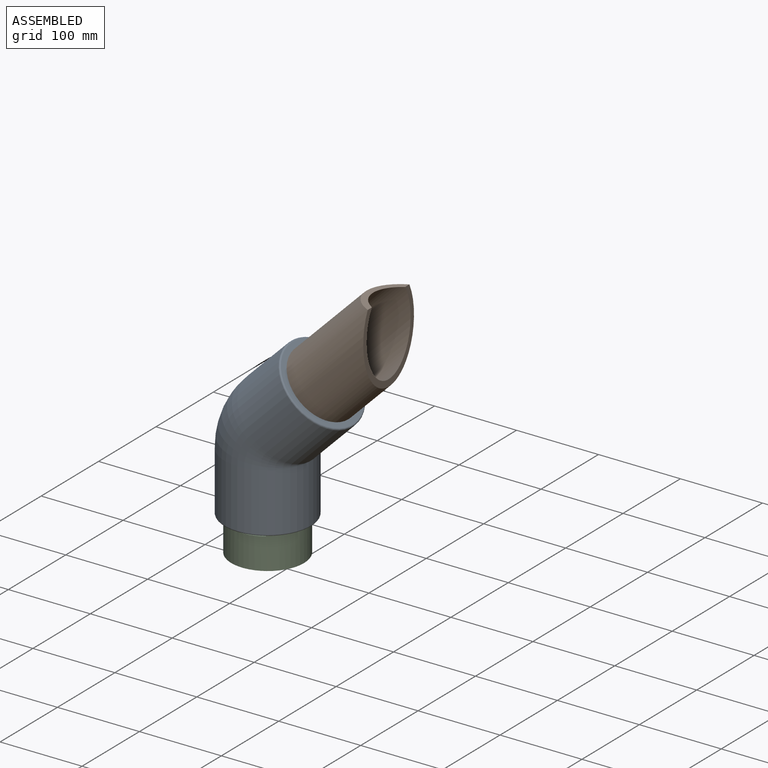
[diagram: assembled view]
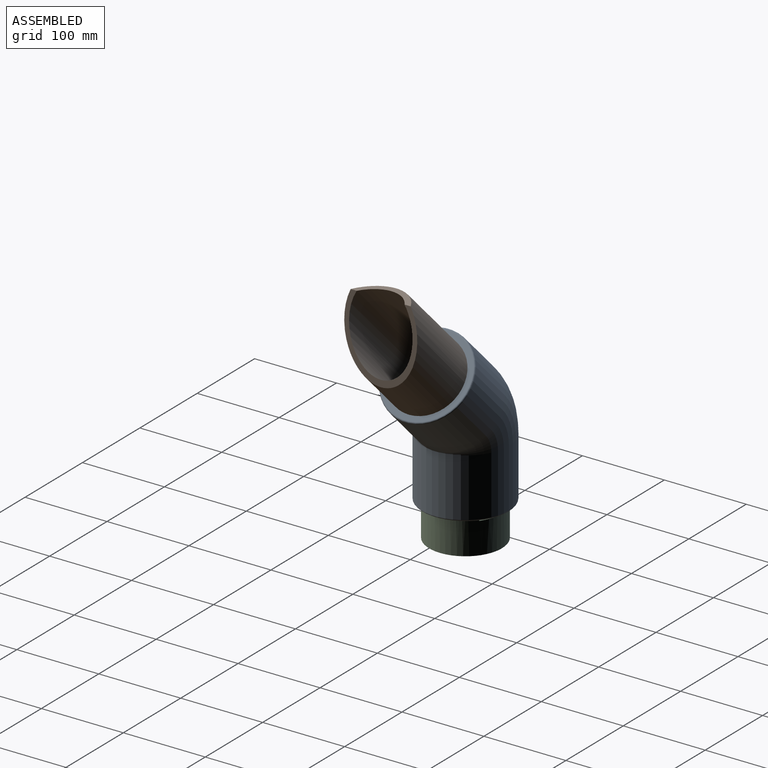
[diagram: assembled view, second angle]
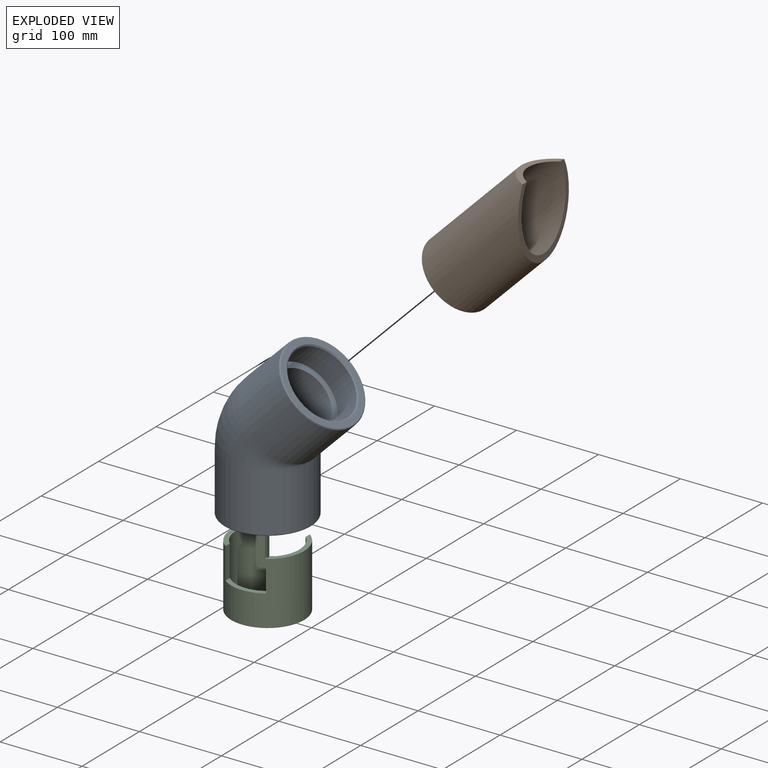
[diagram: exploded view]
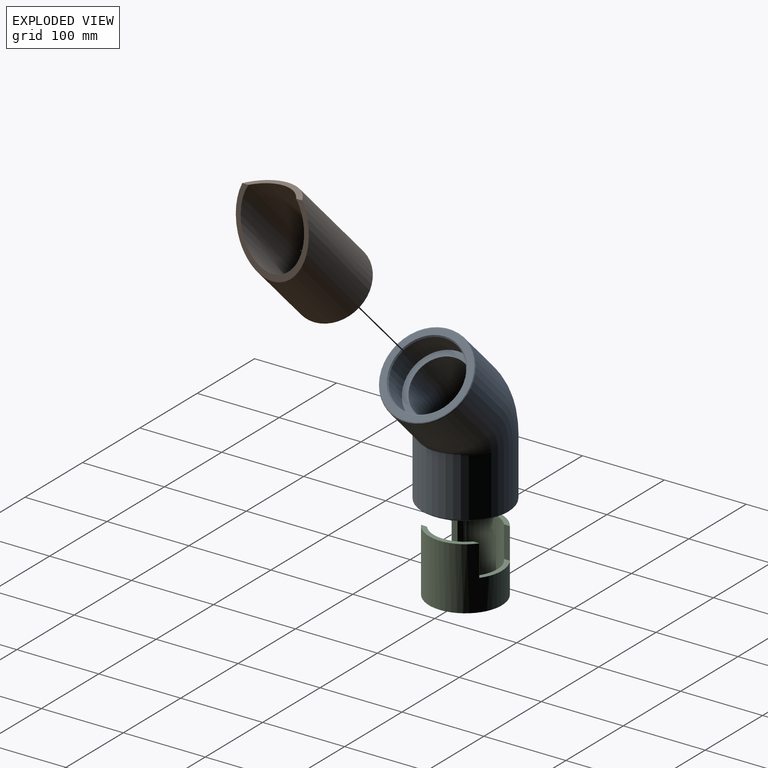
[diagram: exploded view, second angle]
ASSEMBLY  parts=3 mates=4
PART A: 16 faces, bbox 168.9x114.7x202.3 mm
  f0: plane 102.38x72.39mm, normal (0.71,0,0.71), area 2165.7mm2, adj f10,f15
  f1: plane 102.38x102.38mm, normal (0,0,-1), area 2165.7mm2, adj f7,f14
  f2: torus R=53.53mm, axis (0,1,0), area 14000.5mm2, adj f3,f4
  f3: cylinder r=53mm len=106mm, axis (0,0,-1), area 23706.4mm2, adj f2,f14
  f4: cylinder r=53mm len=125.29mm, axis (0.71,0,0.71), area 23706.4mm2, adj f2,f15
  f5: plane 84.93x84.93mm, normal (0,0,-1), area 1782.3mm2, adj f6,f12
  f6: cylinder r=42.46mm len=84.93mm, axis (0,0,-1), area 8676.7mm2, adj f5,f7
  f7: cone r=42.46mm half-angle=45deg, axis (0,0,-1), area 567.8mm2, adj f1,f6
  f8: plane 84.93x60.05mm, normal (0.71,0,0.71), area 1782.3mm2, adj f9,f13
  f9: cylinder r=42.46mm len=84.93mm, axis (0.71,0,0.71), area 8676.7mm2, adj f8,f10
  f10: cone r=42.46mm half-angle=45deg, axis (0.71,0,0.71), area 567.8mm2, adj f0,f9
  f11: torus R=53.53mm, axis (0,1,0), area 9286.2mm2, adj f12,f13
  f12: cylinder r=35.15mm len=70.31mm, axis (0,0,-1), area 8614.2mm2, adj f5,f11
  f13: cylinder r=35.15mm len=77.29mm, axis (0.71,0,0.71), area 8614.2mm2, adj f8,f11
  f14: torus R=51.19mm, axis (0,0,1), area 935.9mm2, adj f1,f3
  f15: torus R=51.19mm, axis (-0.71,0,-0.71), area 935.9mm2, adj f0,f4
PART B: 5 faces, bbox 88.9x88.9x173 mm
  f0: cylinder r=44.45mm len=172.97mm, axis (0,0,1), area 39076.8mm2, adj f2,f3,f4
  f1: cylinder r=38.63mm len=172.97mm, axis (0,0,1), area 34673.3mm2, adj f2,f3,f4
  f2: plane 88.9x88.9mm, normal (0,0,-1), area 1518.2mm2, adj f0,f1
  f3: plane 88.9x69.85mm, normal (-0.71,0,0.71), area 1523.4mm2, adj f0,f1,f4
  f4: plane 72.96x19.05mm, normal (0.71,0,0.71), area 623.7mm2, adj f0,f1,f3
PART C: 11 faces, bbox 88.9x88.9x76.2 mm
  f0: cylinder r=44.45mm len=88.9mm, axis (0,0,1), area 17161.3mm2, adj f2,f3,f4,f5,f6,f7,f8,f9
  f1: cylinder r=38.63mm len=77.27mm, axis (0,0,1), area 14272.7mm2, adj f2,f3,f4,f5,f6,f7,f8,f9
  f2: plane 72.96x19.05mm, normal (0,0,-1), area 441mm2, adj f0,f1,f7,f9
  f3: plane 88.9x88.9mm, normal (0,0,1), area 1518.2mm2, adj f0,f1
  f4: plane 72.96x19.05mm, normal (0,0,-1), area 441mm2, adj f0,f1,f5,f10
  f5: plane 38.1x7.37mm, normal (0,1,0), area 280.7mm2, adj f0,f1,f4,f6
  f6: plane 50.8x15.34mm, normal (0,0,-1), area 318.1mm2, adj f0,f1,f5,f7
  f7: plane 38.1x7.37mm, normal (0,-1,0), area 280.7mm2, adj f0,f1,f2,f6
  f8: plane 50.8x15.34mm, normal (0,0,-1), area 318.1mm2, adj f0,f1,f9,f10
  f9: plane 38.1x7.37mm, normal (0,-1,0), area 280.7mm2, adj f0,f1,f2,f8
  f10: plane 38.1x7.37mm, normal (0,1,0), area 280.7mm2, adj f0,f1,f4,f8
PLACE A at identity fixed
PLACE B rot(axis=(-0.38,0,-0.92),179.7deg) t=(57.62,0,133.32)mm
PLACE C rot(axis=(0.72,0.69,0),180deg) t=(-53.53,0,-77.1)mm
MATE planar B.f0 <-> A.f10  axis (-0.71,0,-0.71) through (-10.27,0,65.43)mm
MATE planar C.f4 <-> A.f14  axis (0,0,1) through (-89.59,1.32,-39)mm
MATE cylindrical C.f0 <-> A.f7  axis (0,0,-1) through (-53.53,0,-77.1)mm
MATE cylindrical B.f0 <-> A.f10  axis (0.71,0,0.71) through (51.25,0,126.95)mm
